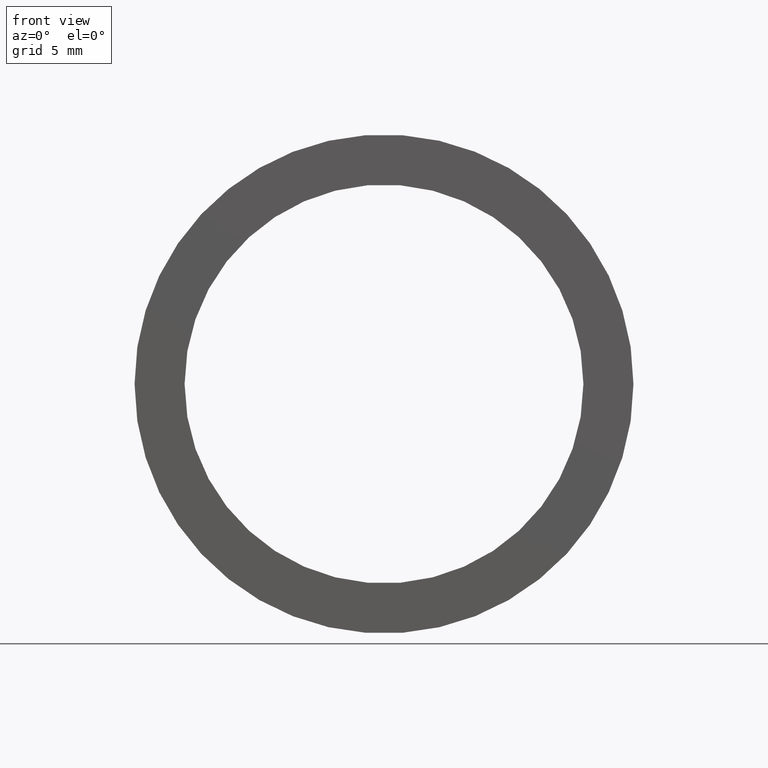
[diagram: clean part render]
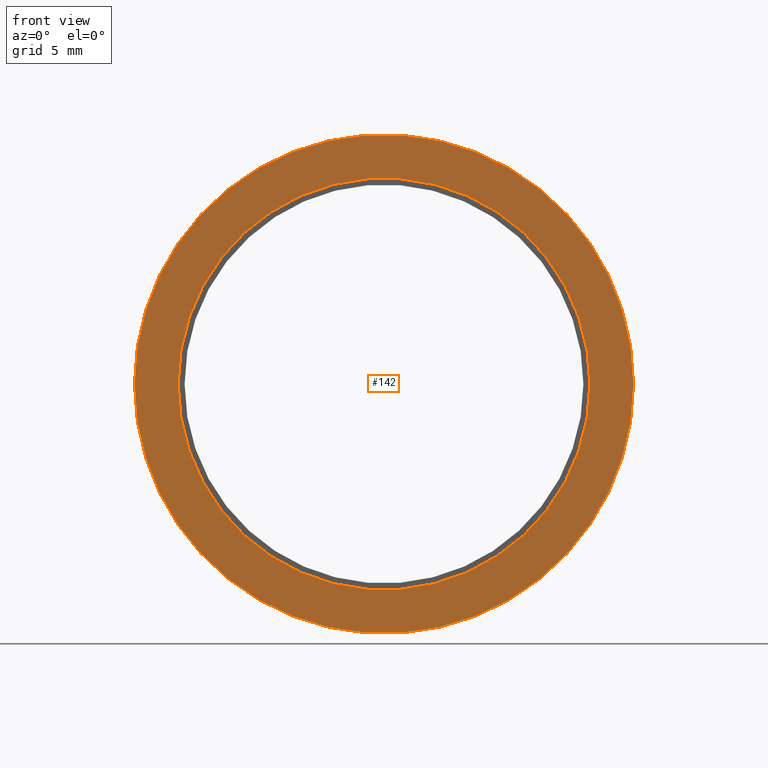
[diagram: same view with one face highlighted and labeled with its STEP entity id]
A machine part, front view. The second image highlights one B-rep face of the part: STEP entity #142.
In plain terms, the highlighted planar face has unit normal (-0, 1, 0).
Its self-contained STEP definition (entity closure, byte-faithful):
#5 = CARTESIAN_POINT ( 'NONE',  ( -15.87499999999999300, -5.413573745600033100E-015, 0.0000000000000000000 ) ) ;
#6 = EDGE_CURVE ( 'NONE', #150, #107, #270, .T. ) ;
#27 = DIRECTION ( 'NONE',  ( -1.000000000000000000, -1.224646799147351000E-016, 0.0000000000000000000 ) ) ;
#30 = FACE_OUTER_BOUND ( 'NONE', #505, .T. ) ;
#32 = CARTESIAN_POINT ( 'NONE',  ( -13.09999999999999800, -1.604287306883029700E-015, 0.0000000000000000000 ) ) ;
#67 = ORIENTED_EDGE ( 'NONE', *, *, #6, .F. ) ;
#86 = FACE_BOUND ( 'NONE', #552, .T. ) ;
#102 = CARTESIAN_POINT ( 'NONE',  ( 2.067940818438636100E-015, 0.0000000000000000000, 0.0000000000000000000 ) ) ;
#107 = VERTEX_POINT ( 'NONE', #380 ) ;
#127 = AXIS2_PLACEMENT_3D ( 'NONE', #575, #523, #529 ) ;
#136 = CARTESIAN_POINT ( 'NONE',  ( 13.10000000000000100, 1.604287306883029700E-015, 1.604287306883032600E-015 ) ) ;
#142 = ADVANCED_FACE ( 'NONE', ( #30, #86 ), #174, .F. ) ;
#150 = VERTEX_POINT ( 'NONE', #5 ) ;
#157 = CIRCLE ( 'NONE', #605, 13.10000000000000000 ) ;
#174 = PLANE ( 'NONE',  #127 ) ;
#206 = EDGE_CURVE ( 'NONE', #455, #250, #498, .T. ) ;
#236 = ORIENTED_EDGE ( 'NONE', *, *, #370, .T. ) ;
#243 = DIRECTION ( 'NONE',  ( -1.224646799147351000E-016, 1.000000000000000000, -0.0000000000000000000 ) ) ;
#250 = VERTEX_POINT ( 'NONE', #136 ) ;
#270 = CIRCLE ( 'NONE', #461, 15.87499999999999600 ) ;
#277 = DIRECTION ( 'NONE',  ( -1.224646799147351000E-016, 1.000000000000000000, -0.0000000000000000000 ) ) ;
#282 = DIRECTION ( 'NONE',  ( -1.000000000000000000, -1.224646799147351000E-016, 0.0000000000000000000 ) ) ;
#302 = ORIENTED_EDGE ( 'NONE', *, *, #361, .F. ) ;
#308 = DIRECTION ( 'NONE',  ( -1.000000000000000000, -1.224646799147350700E-016, 0.0000000000000000000 ) ) ;
#361 = EDGE_CURVE ( 'NONE', #107, #150, #446, .T. ) ;
#368 = ORIENTED_EDGE ( 'NONE', *, *, #206, .T. ) ;
#370 = EDGE_CURVE ( 'NONE', #250, #455, #157, .T. ) ;
#380 = CARTESIAN_POINT ( 'NONE',  ( 15.87500000000000000, -1.525320158307194900E-015, 1.944126793646423200E-015 ) ) ;
#446 = CIRCLE ( 'NONE', #501, 15.87499999999999600 ) ;
#455 = VERTEX_POINT ( 'NONE', #32 ) ;
#461 = AXIS2_PLACEMENT_3D ( 'NONE', #508, #243, #599 ) ;
#498 = CIRCLE ( 'NONE', #595, 13.10000000000000000 ) ;
#501 = AXIS2_PLACEMENT_3D ( 'NONE', #503, #608, #308 ) ;
#503 = CARTESIAN_POINT ( 'NONE',  ( 2.067940818438636500E-015, -3.469446951953614200E-015, 0.0000000000000000000 ) ) ;
#505 = EDGE_LOOP ( 'NONE', ( #67, #302 ) ) ;
#508 = CARTESIAN_POINT ( 'NONE',  ( 2.067940818438636500E-015, -3.469446951953614200E-015, 0.0000000000000000000 ) ) ;
#523 = DIRECTION ( 'NONE',  ( -1.224646799147351000E-016, 1.000000000000000000, 0.0000000000000000000 ) ) ;
#529 = DIRECTION ( 'NONE',  ( -1.000000000000000000, -1.224646799147351000E-016, 0.0000000000000000000 ) ) ;
#548 = CARTESIAN_POINT ( 'NONE',  ( 2.067940818438636100E-015, 0.0000000000000000000, 0.0000000000000000000 ) ) ;
#552 = EDGE_LOOP ( 'NONE', ( #368, #236 ) ) ;
#575 = CARTESIAN_POINT ( 'NONE',  ( 15.87500000000000000, -1.944126793646428200E-016, 0.0000000000000000000 ) ) ;
#595 = AXIS2_PLACEMENT_3D ( 'NONE', #102, #277, #282 ) ;
#599 = DIRECTION ( 'NONE',  ( -1.000000000000000000, -1.224646799147350700E-016, 0.0000000000000000000 ) ) ;
#603 = DIRECTION ( 'NONE',  ( -1.224646799147351000E-016, 1.000000000000000000, -0.0000000000000000000 ) ) ;
#605 = AXIS2_PLACEMENT_3D ( 'NONE', #548, #603, #27 ) ;
#608 = DIRECTION ( 'NONE',  ( -1.224646799147351000E-016, 1.000000000000000000, -0.0000000000000000000 ) ) ;